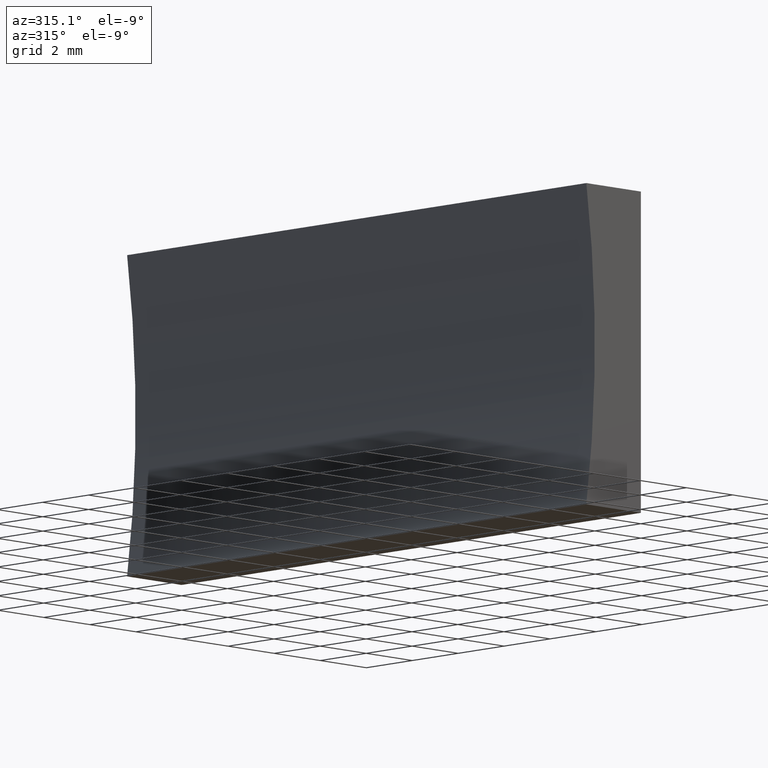
[diagram: clean part render]
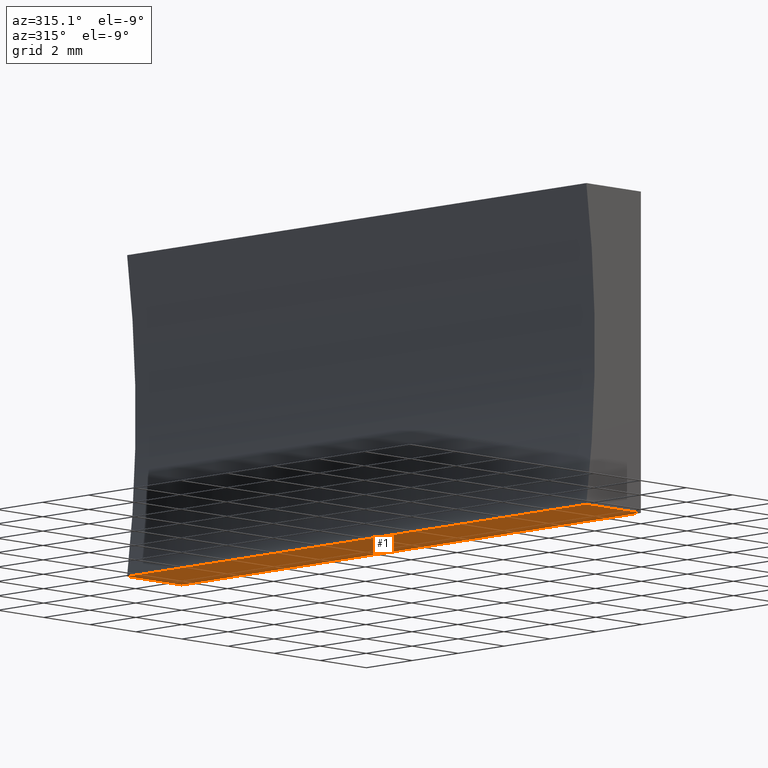
[diagram: same view with one face highlighted and labeled with its STEP entity id]
A machine part, auxiliary view. The second image highlights one B-rep face of the part: STEP entity #1.
In plain terms, the highlighted planar face has unit normal (-0, 0, 1).
Its self-contained STEP definition (entity closure, byte-faithful):
#1 = ADVANCED_FACE ( 'NONE', ( #21 ), #162, .F. ) ;
#4 = LINE ( 'NONE', #117, #149 ) ;
#7 = EDGE_CURVE ( 'NONE', #81, #139, #37, .T. ) ;
#10 = CARTESIAN_POINT ( 'NONE',  ( -2.365849282349278900, 0.0000000000000000000, 8.673617379884035500E-016 ) ) ;
#21 = FACE_OUTER_BOUND ( 'NONE', #95, .T. ) ;
#23 = CARTESIAN_POINT ( 'NONE',  ( 0.0000000000000000000, 20.00000000000000000, 0.0000000000000000000 ) ) ;
#25 = CARTESIAN_POINT ( 'NONE',  ( 0.0000000000000000000, 20.00000000000000000, 0.0000000000000000000 ) ) ;
#29 = DIRECTION ( 'NONE',  ( -1.000000000000000000, 0.0000000000000000000, -7.332349904615364600E-016 ) ) ;
#35 = VECTOR ( 'NONE', #61, 1000.000000000000000 ) ;
#37 = LINE ( 'NONE', #77, #35 ) ;
#40 = ORIENTED_EDGE ( 'NONE', *, *, #146, .F. ) ;
#57 = AXIS2_PLACEMENT_3D ( 'NONE', #25, #110, #164 ) ;
#58 = VERTEX_POINT ( 'NONE', #108 ) ;
#61 = DIRECTION ( 'NONE',  ( -1.000000000000000000, 0.0000000000000000000, -7.332349904615364600E-016 ) ) ;
#65 = ORIENTED_EDGE ( 'NONE', *, *, #127, .T. ) ;
#77 = CARTESIAN_POINT ( 'NONE',  ( 0.0000000000000000000, 0.0000000000000000000, 0.0000000000000000000 ) ) ;
#81 = VERTEX_POINT ( 'NONE', #189 ) ;
#87 = LINE ( 'NONE', #175, #148 ) ;
#95 = EDGE_LOOP ( 'NONE', ( #101, #156, #40, #65 ) ) ;
#96 = CARTESIAN_POINT ( 'NONE',  ( 0.0000000000000000000, 20.00000000000000000, 0.0000000000000000000 ) ) ;
#101 = ORIENTED_EDGE ( 'NONE', *, *, #7, .T. ) ;
#106 = EDGE_CURVE ( 'NONE', #58, #139, #87, .T. ) ;
#107 = VERTEX_POINT ( 'NONE', #23 ) ;
#108 = CARTESIAN_POINT ( 'NONE',  ( -2.365849282349278900, 20.00000000000000000, 8.673617379884035500E-016 ) ) ;
#110 = DIRECTION ( 'NONE',  ( -7.332349904615365600E-016, 0.0000000000000000000, 1.000000000000000000 ) ) ;
#117 = CARTESIAN_POINT ( 'NONE',  ( 0.0000000000000000000, 20.00000000000000000, 0.0000000000000000000 ) ) ;
#124 = LINE ( 'NONE', #96, #163 ) ;
#127 = EDGE_CURVE ( 'NONE', #107, #81, #124, .T. ) ;
#139 = VERTEX_POINT ( 'NONE', #10 ) ;
#145 = DIRECTION ( 'NONE',  ( -0.0000000000000000000, -1.000000000000000000, -0.0000000000000000000 ) ) ;
#146 = EDGE_CURVE ( 'NONE', #107, #58, #4, .T. ) ;
#148 = VECTOR ( 'NONE', #145, 1000.000000000000000 ) ;
#149 = VECTOR ( 'NONE', #29, 1000.000000000000000 ) ;
#156 = ORIENTED_EDGE ( 'NONE', *, *, #106, .F. ) ;
#162 = PLANE ( 'NONE',  #57 ) ;
#163 = VECTOR ( 'NONE', #176, 1000.000000000000000 ) ;
#164 = DIRECTION ( 'NONE',  ( 1.000000000000000000, 0.0000000000000000000, 7.332349904615365600E-016 ) ) ;
#175 = CARTESIAN_POINT ( 'NONE',  ( -2.365849282349278900, 20.00000000000000000, 8.673617379884035500E-016 ) ) ;
#176 = DIRECTION ( 'NONE',  ( -0.0000000000000000000, -1.000000000000000000, -0.0000000000000000000 ) ) ;
#189 = CARTESIAN_POINT ( 'NONE',  ( 0.0000000000000000000, 0.0000000000000000000, 0.0000000000000000000 ) ) ;